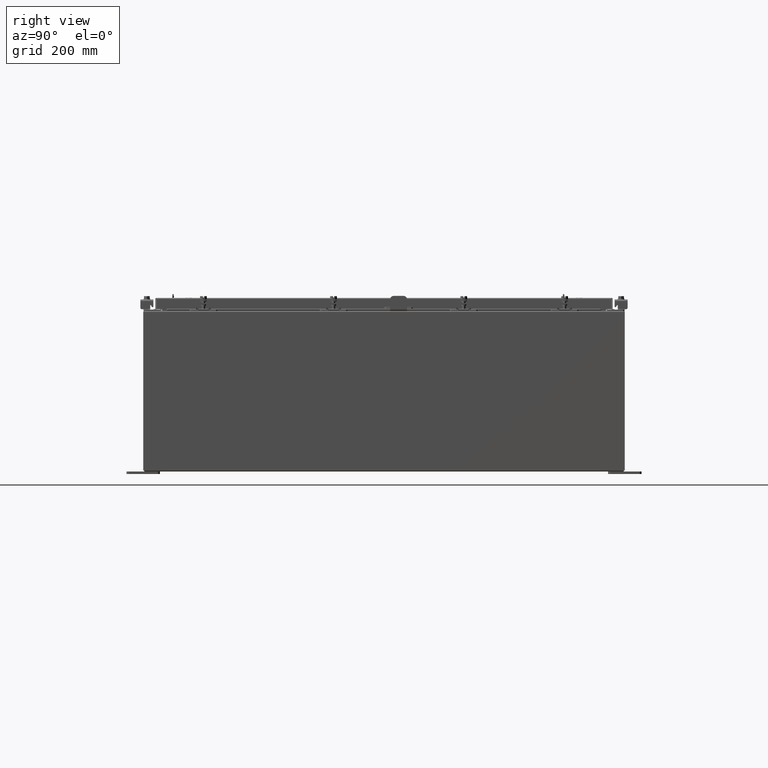
[diagram: clean part render]
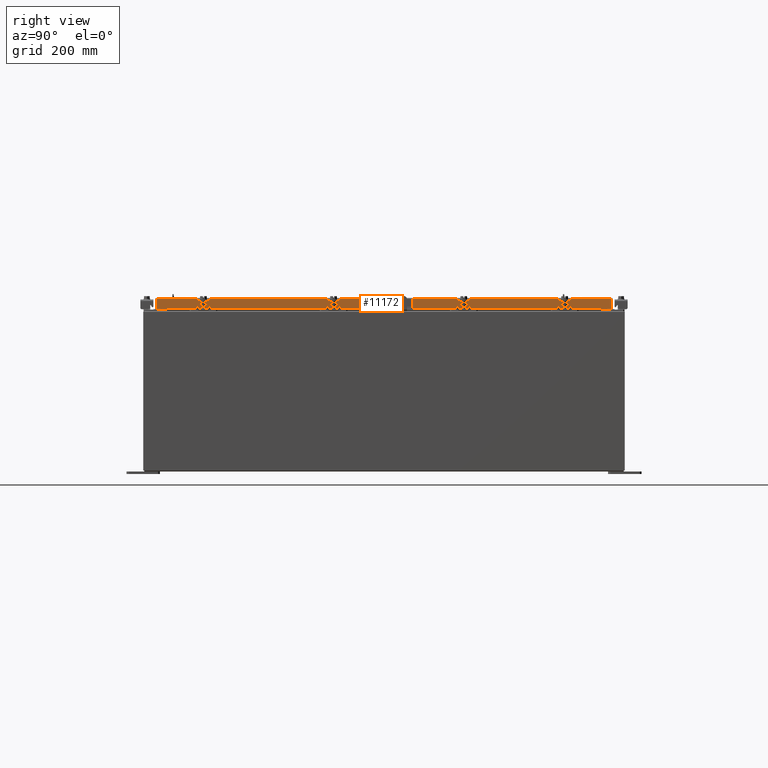
[diagram: same view with one face highlighted and labeled with its STEP entity id]
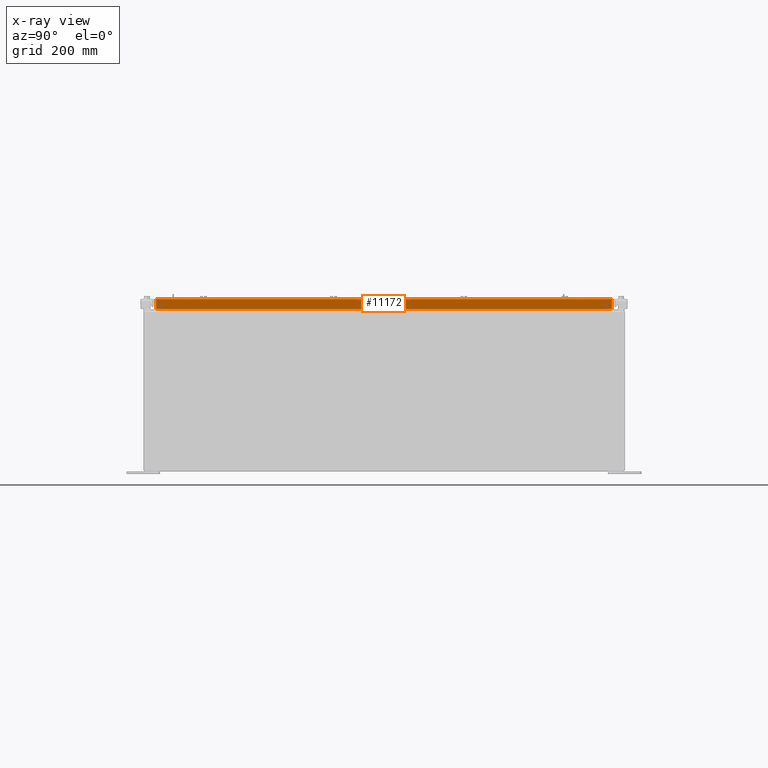
[diagram: x-ray of the same camera — body ghosted, the highlighted face saturated]
A machine part, right view. The second image highlights one B-rep face of the part: STEP entity #11172.
The next image is the same camera in x-ray: the body ghosted, the highlighted face saturated — about 0% of this face is hidden behind the body in this view.
In plain terms, the highlighted planar face has unit normal (1, 0, 0).
Its self-contained STEP definition (entity closure, byte-faithful):
#1225 = ORIENTED_EDGE ( 'NONE', *, *, #4945, .F. ) ;
#1280 = CARTESIAN_POINT ( 'NONE',  ( 17.09400000000000100, 0.0000000000000000000, 4.808052468849102900E-014 ) ) ;
#1767 = CARTESIAN_POINT ( 'NONE',  ( 17.09400000000000100, 0.0000000000000000000, -0.08770000000000026400 ) ) ;
#2891 = VECTOR ( 'NONE', #12060, 39.37007874015748100 ) ;
#3408 = CARTESIAN_POINT ( 'NONE',  ( 17.09400000000000100, 17.00515786437627600, -0.8499999999999999800 ) ) ;
#4020 = ORIENTED_EDGE ( 'NONE', *, *, #15658, .T. ) ;
#4808 = LINE ( 'NONE', #1767, #15268 ) ;
#4827 = LINE ( 'NONE', #25461, #9727 ) ;
#4945 = EDGE_CURVE ( 'NONE', #8074, #5858, #25243, .T. ) ;
#5438 = EDGE_CURVE ( 'NONE', #15284, #8074, #22889, .T. ) ;
#5858 = VERTEX_POINT ( 'NONE', #23777 ) ;
#5879 = DIRECTION ( 'NONE',  ( 0.0000000000000000000, -1.000000000000000000, 0.0000000000000000000 ) ) ;
#6350 = ORIENTED_EDGE ( 'NONE', *, *, #12433, .F. ) ;
#7256 = VECTOR ( 'NONE', #26834, 39.37007874015748100 ) ;
#7484 = DIRECTION ( 'NONE',  ( 2.818880942772360100E-015, 0.0000000000000000000, -1.000000000000000000 ) ) ;
#7692 = VERTEX_POINT ( 'NONE', #20541 ) ;
#7731 = EDGE_CURVE ( 'NONE', #22993, #7692, #20074, .T. ) ;
#7852 = DIRECTION ( 'NONE',  ( -2.818880942772360500E-015, -6.982962677686269100E-015, 1.000000000000000000 ) ) ;
#7889 = CARTESIAN_POINT ( 'NONE',  ( 17.09399999999999400, 16.25515786437627200, -0.8500000000000020900 ) ) ;
#7913 = LINE ( 'NONE', #7889, #7256 ) ;
#8074 = VERTEX_POINT ( 'NONE', #13636 ) ;
#8537 = DIRECTION ( 'NONE',  ( 0.0000000000000000000, -1.000000000000000000, 0.0000000000000000000 ) ) ;
#9591 = VERTEX_POINT ( 'NONE', #11673 ) ;
#9727 = VECTOR ( 'NONE', #8537, 39.37007874015748100 ) ;
#10022 = AXIS2_PLACEMENT_3D ( 'NONE', #1280, #20067, #7484 ) ;
#11172 = ADVANCED_FACE ( 'NONE', ( #15346 ), #17932, .T. ) ;
#11673 = CARTESIAN_POINT ( 'NONE',  ( 17.09399999999999400, 16.25515786437626900, -0.8500000000000020900 ) ) ;
#12060 = DIRECTION ( 'NONE',  ( -2.818880942772360500E-015, -6.982962677686269100E-015, 1.000000000000000000 ) ) ;
#12244 = VECTOR ( 'NONE', #18131, 39.37007874015748100 ) ;
#12433 = EDGE_CURVE ( 'NONE', #22993, #9591, #4827, .T. ) ;
#12776 = ORIENTED_EDGE ( 'NONE', *, *, #5438, .F. ) ;
#13048 = CARTESIAN_POINT ( 'NONE',  ( 17.09400000000000100, -17.00515786437626900, -0.07470000000000015500 ) ) ;
#13636 = CARTESIAN_POINT ( 'NONE',  ( 17.09400000000000100, -17.00515786437626500, -0.8499999999999999800 ) ) ;
#14445 = VECTOR ( 'NONE', #7852, 39.37007874015748100 ) ;
#15021 = CARTESIAN_POINT ( 'NONE',  ( 17.09399999999999400, -16.25515786437626900, -0.8500000000000020900 ) ) ;
#15268 = VECTOR ( 'NONE', #5879, 39.37007874015748100 ) ;
#15284 = VERTEX_POINT ( 'NONE', #15021 ) ;
#15346 = FACE_OUTER_BOUND ( 'NONE', #25759, .T. ) ;
#15658 = EDGE_CURVE ( 'NONE', #7692, #5858, #4808, .T. ) ;
#17932 = PLANE ( 'NONE',  #10022 ) ;
#18131 = DIRECTION ( 'NONE',  ( 0.0000000000000000000, -1.000000000000000000, 0.0000000000000000000 ) ) ;
#18282 = CARTESIAN_POINT ( 'NONE',  ( 17.09400000000000100, -17.09400000000000100, -0.8499999999999999800 ) ) ;
#18973 = EDGE_CURVE ( 'NONE', #9591, #15284, #7913, .T. ) ;
#20067 = DIRECTION ( 'NONE',  ( 1.000000000000000000, 0.0000000000000000000, 2.818880942772360100E-015 ) ) ;
#20074 = LINE ( 'NONE', #22062, #14445 ) ;
#20541 = CARTESIAN_POINT ( 'NONE',  ( 17.09400000000000100, 17.00515786437626900, -0.08770000000000026400 ) ) ;
#21985 = ORIENTED_EDGE ( 'NONE', *, *, #7731, .T. ) ;
#22062 = CARTESIAN_POINT ( 'NONE',  ( 17.09400000000000100, 17.00515786437626900, 1.682818364097186200E-013 ) ) ;
#22652 = ORIENTED_EDGE ( 'NONE', *, *, #18973, .F. ) ;
#22889 = LINE ( 'NONE', #18282, #12244 ) ;
#22993 = VERTEX_POINT ( 'NONE', #3408 ) ;
#23777 = CARTESIAN_POINT ( 'NONE',  ( 17.09400000000000100, -17.00515786437626900, -0.08770000000000026400 ) ) ;
#25243 = LINE ( 'NONE', #13048, #2891 ) ;
#25461 = CARTESIAN_POINT ( 'NONE',  ( 17.09400000000000100, -17.09400000000000100, -0.8499999999999999800 ) ) ;
#25759 = EDGE_LOOP ( 'NONE', ( #1225, #12776, #22652, #6350, #21985, #4020 ) ) ;
#26834 = DIRECTION ( 'NONE',  ( 0.0000000000000000000, -1.000000000000000000, 0.0000000000000000000 ) ) ;